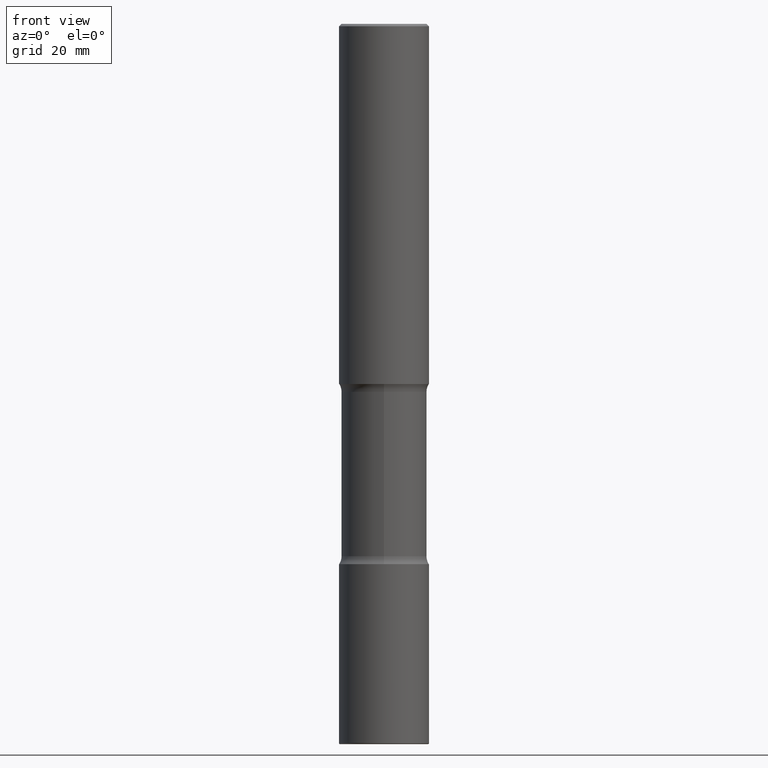
[diagram: clean part render]
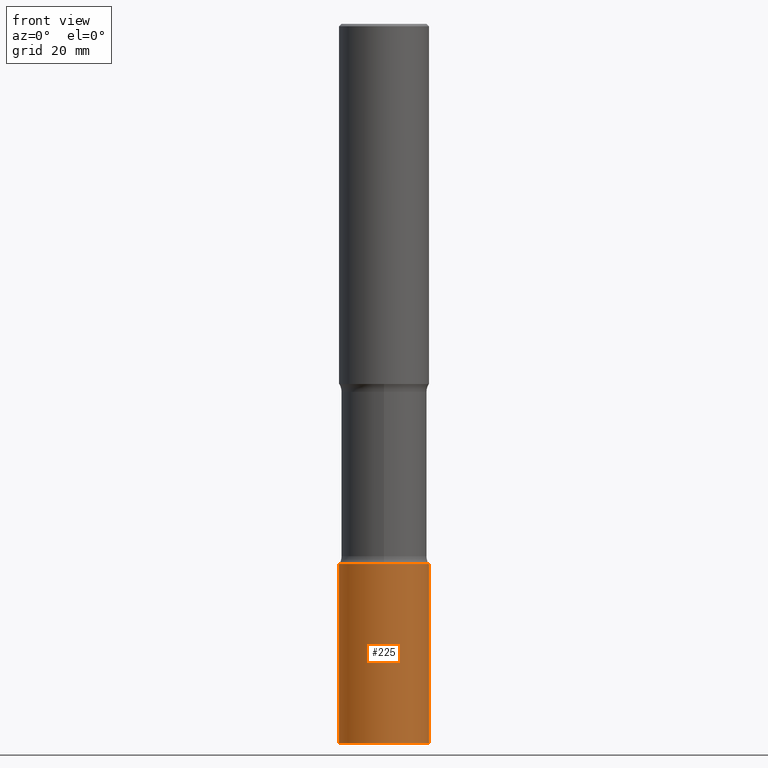
[diagram: same view with one face highlighted and labeled with its STEP entity id]
A machine part, front view. The second image highlights one B-rep face of the part: STEP entity #225.
In plain terms, the highlighted cylindrical surface (partial cylindrical patch) has radius 9.525 mm, axis along (-0, 0, 1).
Its self-contained STEP definition (entity closure, byte-faithful):
#7 = EDGE_CURVE ( 'NONE', #544, #146, #245, .T. ) ;
#24 = FACE_OUTER_BOUND ( 'NONE', #180, .T. ) ;
#27 = DIRECTION ( 'NONE',  ( 1.000000000000000000, -6.982962677686265922E-15, 0.000000000000000000 ) ) ;
#60 = ORIENTED_EDGE ( 'NONE', *, *, #264, .F. ) ;
#67 = AXIS2_PLACEMENT_3D ( 'NONE', #242, #333, #27 ) ;
#75 = CARTESIAN_POINT ( 'NONE',  ( 1.464835814904896579E-28, -2.091397321967043948E-14, -5.989999999999999325 ) ) ;
#92 = VERTEX_POINT ( 'NONE', #543 ) ;
#114 = AXIS2_PLACEMENT_3D ( 'NONE', #201, #429, #156 ) ;
#115 = ORIENTED_EDGE ( 'NONE', *, *, #232, .T. ) ;
#143 = VERTEX_POINT ( 'NONE', #420 ) ;
#145 = EDGE_CURVE ( 'NONE', #92, #143, #192, .T. ) ;
#146 = VERTEX_POINT ( 'NONE', #488 ) ;
#148 = CIRCLE ( 'NONE', #467, 0.3750000000000002776 ) ;
#154 = CARTESIAN_POINT ( 'NONE',  ( -0.3750000000000003886, 2.664535259100378458E-15, -1.844600658845591560E-29 ) ) ;
#156 = DIRECTION ( 'NONE',  ( 1.000000000000000000, -6.982962677686265922E-15, 4.876176775795935793E-29 ) ) ;
#177 = VECTOR ( 'NONE', #409, 39.37007874015748143 ) ;
#180 = EDGE_LOOP ( 'NONE', ( #485, #115, #454, #60 ) ) ;
#192 = LINE ( 'NONE', #282, #177 ) ;
#201 = CARTESIAN_POINT ( 'NONE',  ( 0.000000000000000000, 0.000000000000000000, 0.000000000000000000 ) ) ;
#225 = ADVANCED_FACE ( 'NONE', ( #24 ), #339, .T. ) ;
#232 = EDGE_CURVE ( 'NONE', #544, #92, #148, .T. ) ;
#242 = CARTESIAN_POINT ( 'NONE',  ( 1.100460962783311244E-28, -1.571166602479415374E-14, -4.499999999999999112 ) ) ;
#245 = LINE ( 'NONE', #154, #526 ) ;
#250 = CARTESIAN_POINT ( 'NONE',  ( -0.3750000000000006661, -1.824943796057005747E-14, -5.989999999999999325 ) ) ;
#264 = EDGE_CURVE ( 'NONE', #146, #143, #375, .T. ) ;
#282 = CARTESIAN_POINT ( 'NONE',  ( 0.3750000000000003886, -2.618611004132352383E-15, 1.828566290923477884E-29 ) ) ;
#333 = DIRECTION ( 'NONE',  ( -2.445468806185136597E-29, 3.491481338843145583E-15, 1.000000000000000000 ) ) ;
#339 = CYLINDRICAL_SURFACE ( 'NONE', #114, 0.3750000000000003886 ) ;
#375 = CIRCLE ( 'NONE', #67, 0.3750000000000003886 ) ;
#409 = DIRECTION ( 'NONE',  ( -2.445468806185136877E-29, 3.491481338843145188E-15, 1.000000000000000000 ) ) ;
#418 = DIRECTION ( 'NONE',  ( -2.445468806185136877E-29, 3.491481338843145188E-15, 1.000000000000000000 ) ) ;
#420 = CARTESIAN_POINT ( 'NONE',  ( 0.3750000000000003886, -1.833027702892650691E-14, -4.499999999999999112 ) ) ;
#429 = DIRECTION ( 'NONE',  ( -2.445468806185136597E-29, 3.491481338843145583E-15, 1.000000000000000000 ) ) ;
#454 = ORIENTED_EDGE ( 'NONE', *, *, #145, .T. ) ;
#467 = AXIS2_PLACEMENT_3D ( 'NONE', #75, #497, #509 ) ;
#485 = ORIENTED_EDGE ( 'NONE', *, *, #7, .F. ) ;
#488 = CARTESIAN_POINT ( 'NONE',  ( -0.3750000000000003886, -1.564828436313191776E-14, -4.499999999999999112 ) ) ;
#497 = DIRECTION ( 'NONE',  ( -2.445468806185136597E-29, 3.491481338843145583E-15, 1.000000000000000000 ) ) ;
#509 = DIRECTION ( 'NONE',  ( 1.000000000000000000, -6.982962677686267499E-15, 0.000000000000000000 ) ) ;
#526 = VECTOR ( 'NONE', #418, 39.37007874015748143 ) ;
#543 = CARTESIAN_POINT ( 'NONE',  ( 0.3750000000000006661, -2.353258422380279265E-14, -5.989999999999999325 ) ) ;
#544 = VERTEX_POINT ( 'NONE', #250 ) ;